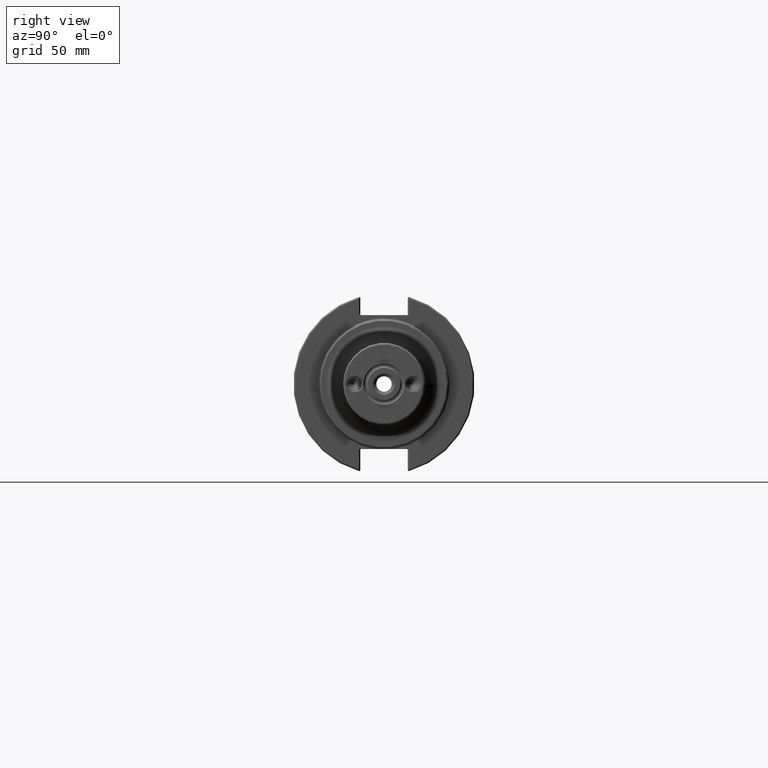
[diagram: clean part render]
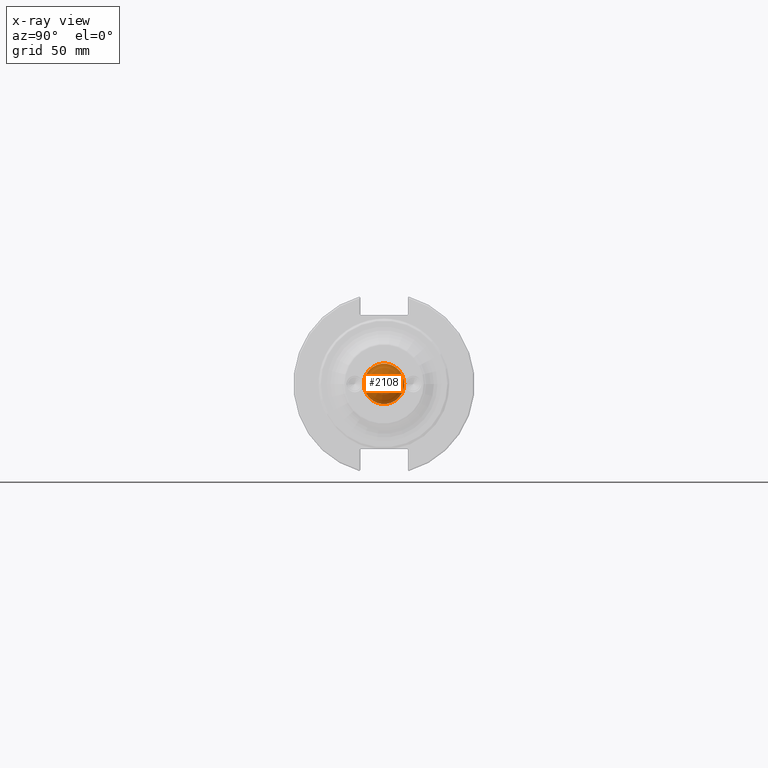
[diagram: x-ray — body ghosted, one internal face saturated and labeled with its STEP entity id]
A machine part, right view, then the same camera in x-ray: the body is ghosted and one INTERNAL B-rep face — a face not visible from any outside direction — is saturated and labeled: STEP entity #2108.
In plain terms, the highlighted conical surface has half-angle 59 deg.
Its self-contained STEP definition (entity closure, byte-faithful):
#44=CONICAL_SURFACE('',#2322,0.21625,1.02974425867665);
#485=FACE_BOUND('',#851,.T.);
#552=CIRCLE('',#2281,0.165);
#573=CIRCLE('',#2323,0.4325);
#675=FACE_OUTER_BOUND('',#850,.T.);
#850=EDGE_LOOP('',(#1613));
#851=EDGE_LOOP('',(#1614));
#1033=VERTEX_POINT('',#3298);
#1054=VERTEX_POINT('',#3361);
#1246=EDGE_CURVE('',#1033,#1033,#552,.T.);
#1267=EDGE_CURVE('',#1054,#1054,#573,.T.);
#1613=ORIENTED_EDGE('',*,*,#1246,.T.);
#1614=ORIENTED_EDGE('',*,*,#1267,.T.);
#2108=ADVANCED_FACE('',(#675,#485),#44,.F.);
#2281=AXIS2_PLACEMENT_3D('',#3299,#2623,#2624);
#2322=AXIS2_PLACEMENT_3D('',#3360,#2705,#2706);
#2323=AXIS2_PLACEMENT_3D('',#3362,#2707,#2708);
#2623=DIRECTION('center_axis',(1.,1.85241051355599E-48,0.));
#2624=DIRECTION('ref_axis',(0.,0.,-1.));
#2705=DIRECTION('center_axis',(-1.,0.,0.));
#2706=DIRECTION('ref_axis',(0.,-1.,0.));
#2707=DIRECTION('center_axis',(-1.,0.,0.));
#2708=DIRECTION('ref_axis',(0.,-1.,0.));
#3298=CARTESIAN_POINT('',(6.16073021558987,-2.02066721859313E-17,0.165));
#3299=CARTESIAN_POINT('Origin',(6.16073021558987,1.14122014225407E-47,0.));
#3360=CARTESIAN_POINT('Origin',(6.12993610886471,0.,0.));
#3361=CARTESIAN_POINT('',(6.,-0.4325,0.));
#3362=CARTESIAN_POINT('Origin',(6.,0.,0.));